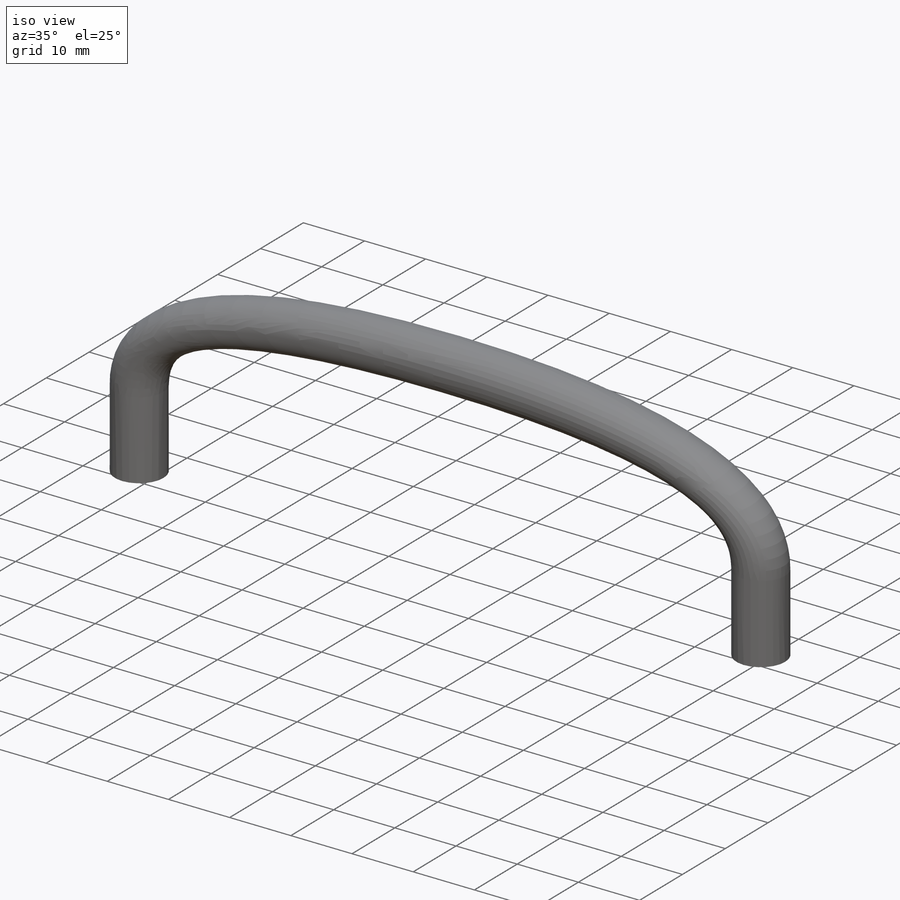
[diagram: iso view]
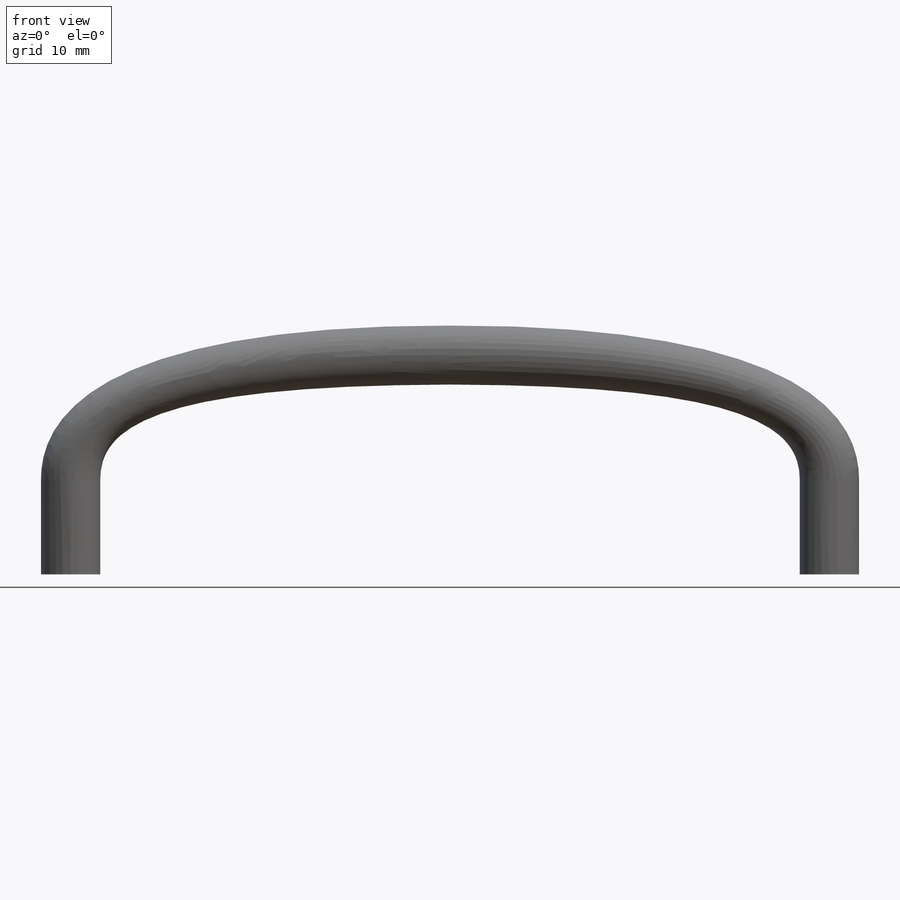
[diagram: front view]
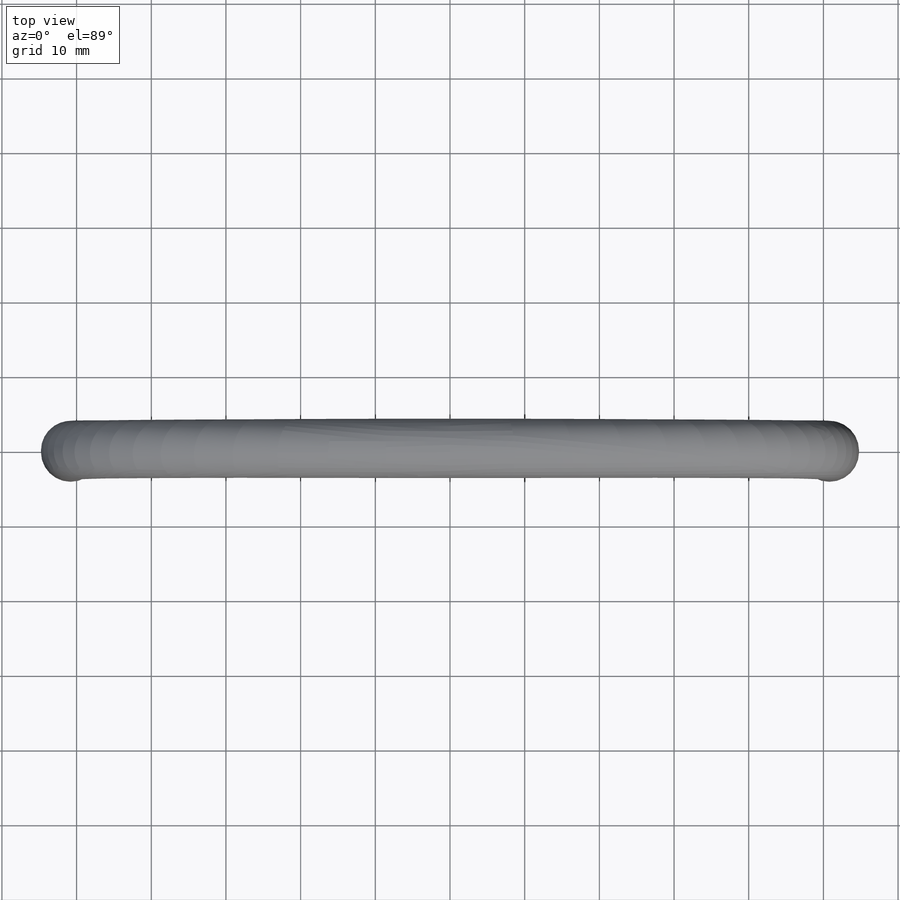
[diagram: top view]
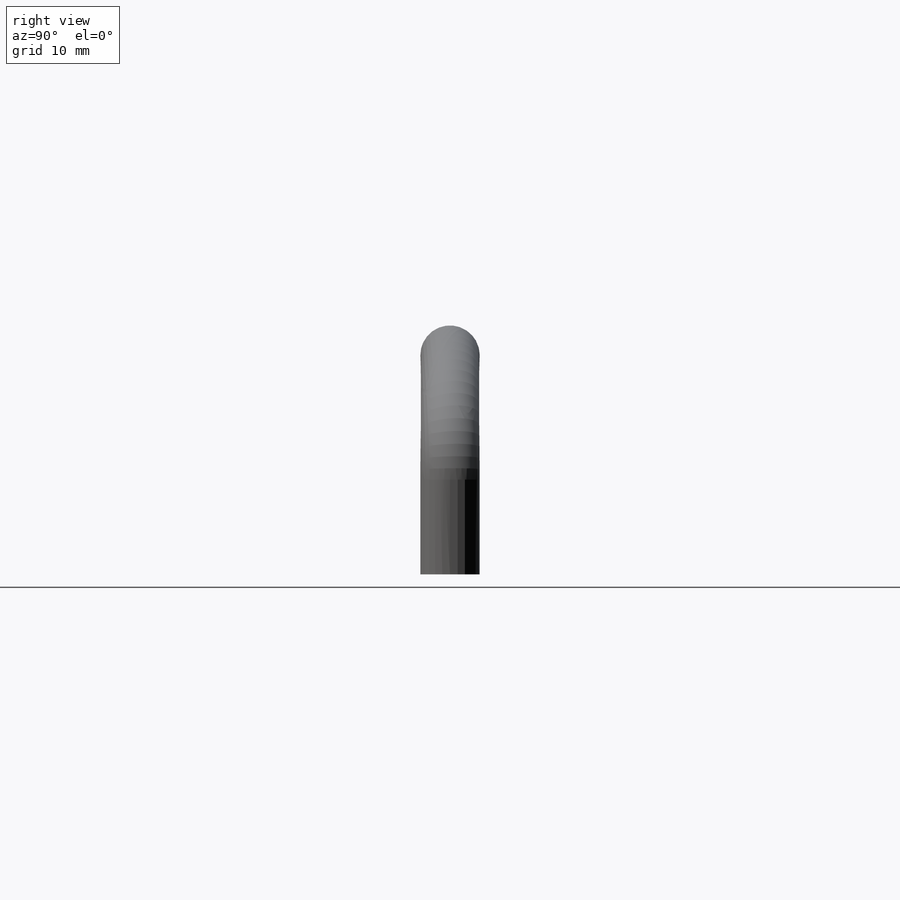
[diagram: right view]
SOLIDWORKS PART (.sldprt)
format: sldprt  version: not decoded by parser v0  size: 249,344 bytes
history: native  units: mm
features: sketch x3, mirror x2, material x1, extrude x1, cut_extrude x1 (+16 scaffold rows collapsed)
feature tree (24):
  scaffold x16  (default folders/planes/origin — collapsed)
  material  "Wrought Stainless Steel"
  sketch  "Sketch1"  dims[c1.D1=~11.002031mm c1.D2=7.9375mm c1.D3=7.9375mm c2.D1=50.8mm c2.D3=50.8mm]
  extrude  "Boss-Extrude1"  Depth=12.7mm
  sketch  "Sketch2"  dims[D1=7.9375mm D2=~29.36875mm]
  mirror  "Mirror5"
  sketch  "Sketch3"  dims[D1=4.1656mm]
  cut_extrude  "Cut-Extrude1"  Depth=12.7mm
  mirror  "Mirror6"
decode coverage: 5 of 7 modeling features carry decoded parameters
note: ~ marks probable driven/reference dimensions
note: suppression state not decoded; provenance and decode notes live in map.json
